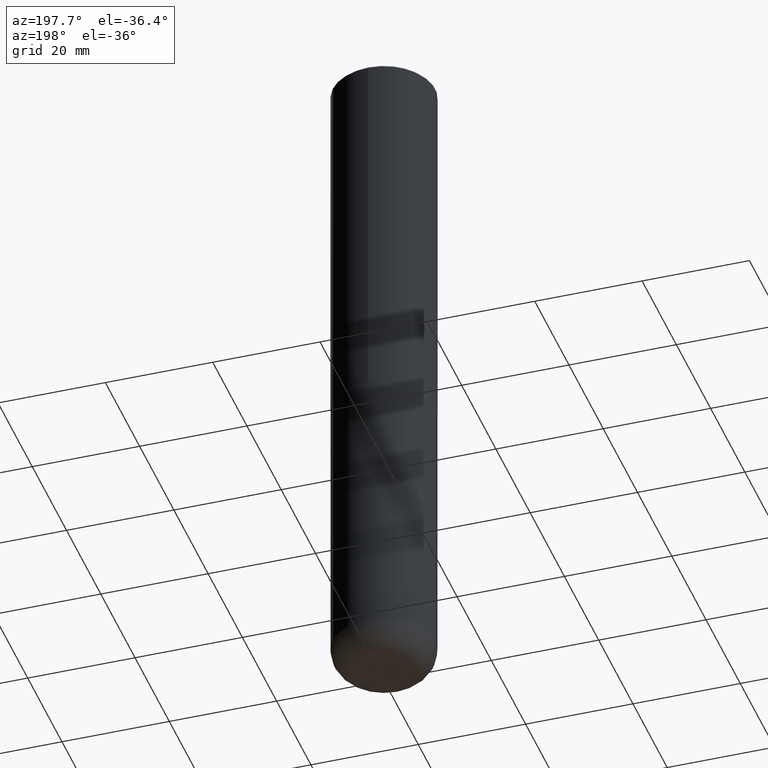
[diagram: clean part render]
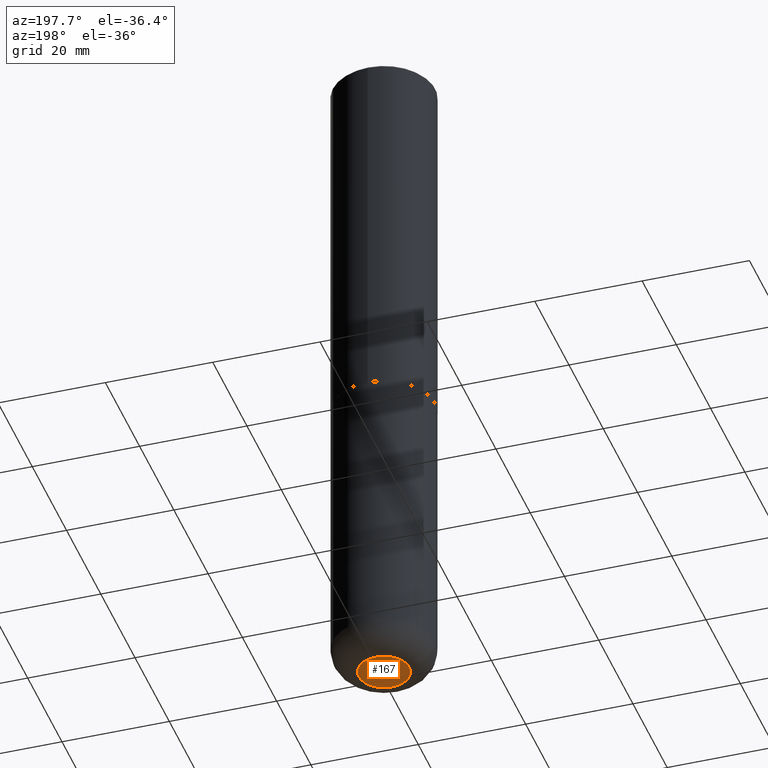
[diagram: same view with one face highlighted and labeled with its STEP entity id]
A machine part, auxiliary view. The second image highlights one B-rep face of the part: STEP entity #167.
In plain terms, the highlighted planar face has unit normal (0, -0, -1).
Its self-contained STEP definition (entity closure, byte-faithful):
#45 = DIRECTION ( 'NONE',  ( -1.000000000000000000, 6.982962677686265922E-15, -4.876176775795935793E-29 ) ) ;
#74 = DIRECTION ( 'NONE',  ( 2.438088387897960049E-29, -3.491481338843145188E-15, -1.000000000000000000 ) ) ;
#79 = CARTESIAN_POINT ( 'NONE',  ( 1.222734403092568523E-28, -1.745740669421572989E-14, -5.000000000000000000 ) ) ;
#85 = CARTESIAN_POINT ( 'NONE',  ( 1.222734403092568523E-28, -1.745740669421572989E-14, -5.000000000000000000 ) ) ;
#101 = PLANE ( 'NONE',  #153 ) ;
#107 = DIRECTION ( 'NONE',  ( 1.000000000000000000, -6.982962677686272233E-15, 0.000000000000000000 ) ) ;
#148 = VERTEX_POINT ( 'NONE', #397 ) ;
#153 = AXIS2_PLACEMENT_3D ( 'NONE', #235, #74, #45 ) ;
#167 = ADVANCED_FACE ( 'NONE', ( #265 ), #101, .T. ) ;
#184 = CIRCLE ( 'NONE', #398, 0.1850000000000000810 ) ;
#199 = ORIENTED_EDGE ( 'NONE', *, *, #249, .F. ) ;
#214 = ORIENTED_EDGE ( 'NONE', *, *, #302, .F. ) ;
#224 = CARTESIAN_POINT ( 'NONE',  ( -0.1850000000000000810, -1.513619630689734772E-14, -5.000000000000000000 ) ) ;
#235 = CARTESIAN_POINT ( 'NONE',  ( 1.222734403092568523E-28, -1.745740669421572989E-14, -5.000000000000000000 ) ) ;
#249 = EDGE_CURVE ( 'NONE', #380, #148, #326, .T. ) ;
#256 = DIRECTION ( 'NONE',  ( -2.445468806185136597E-29, 3.491481338843145583E-15, 1.000000000000000000 ) ) ;
#265 = FACE_OUTER_BOUND ( 'NONE', #279, .T. ) ;
#279 = EDGE_LOOP ( 'NONE', ( #214, #199 ) ) ;
#302 = EDGE_CURVE ( 'NONE', #148, #380, #184, .T. ) ;
#320 = DIRECTION ( 'NONE',  ( 1.000000000000000000, -6.982962677686272233E-15, 0.000000000000000000 ) ) ;
#326 = CIRCLE ( 'NONE', #409, 0.1850000000000000810 ) ;
#337 = DIRECTION ( 'NONE',  ( -2.445468806185136597E-29, 3.491481338843145583E-15, 1.000000000000000000 ) ) ;
#380 = VERTEX_POINT ( 'NONE', #224 ) ;
#397 = CARTESIAN_POINT ( 'NONE',  ( 0.1850000000000000810, -1.874925478958768986E-14, -5.000000000000000000 ) ) ;
#398 = AXIS2_PLACEMENT_3D ( 'NONE', #85, #256, #320 ) ;
#409 = AXIS2_PLACEMENT_3D ( 'NONE', #79, #337, #107 ) ;